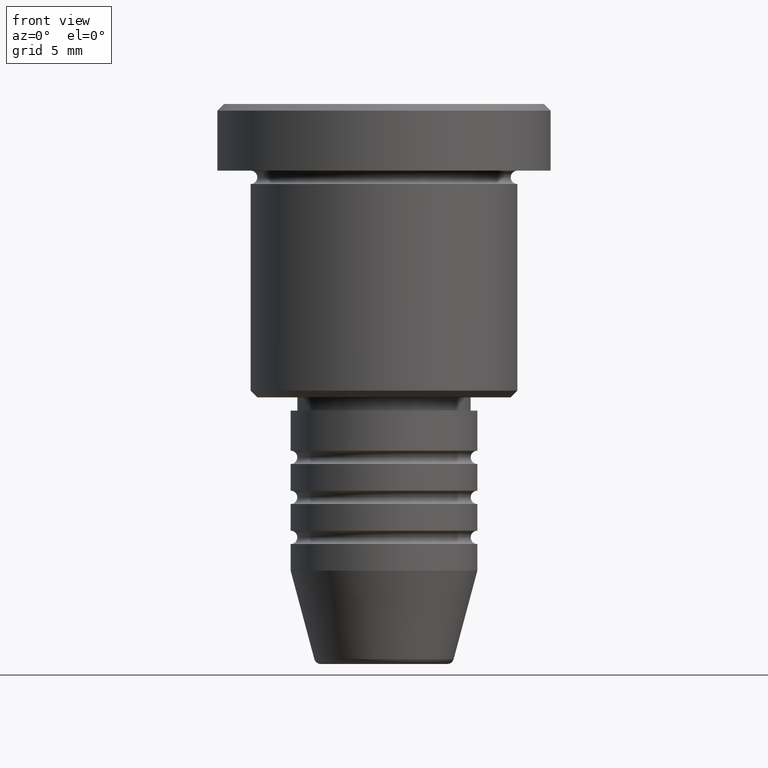
[diagram: clean part render]
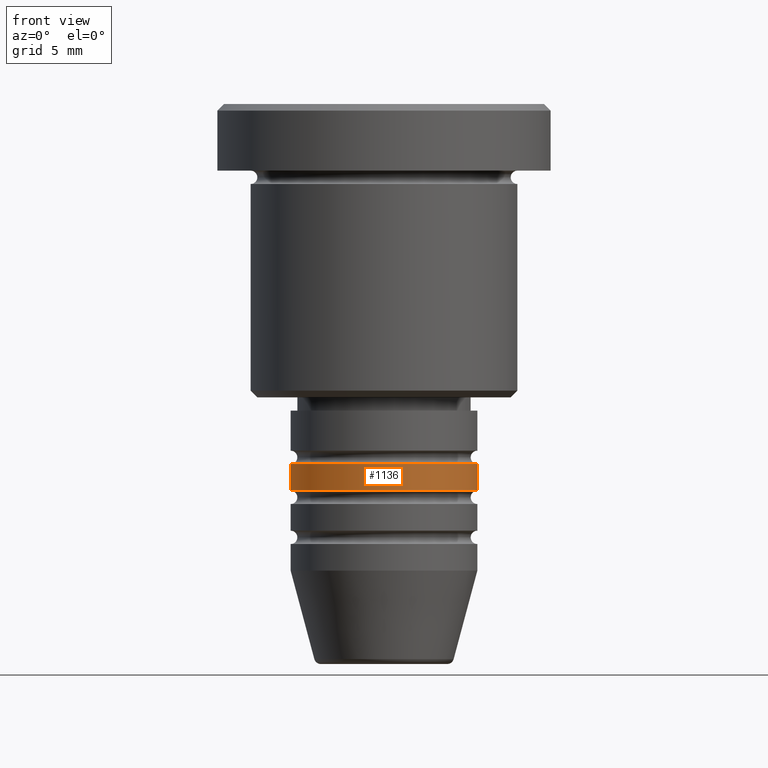
[diagram: same view with one face highlighted and labeled with its STEP entity id]
A machine part, front view. The second image highlights one B-rep face of the part: STEP entity #1136.
In plain terms, the highlighted cylindrical surface (partial cylindrical patch) has radius 7 mm, axis along (-0, -0, 1).
Its self-contained STEP definition (entity closure, byte-faithful):
#25 = ORIENTED_EDGE ( 'NONE', *, *, #592, .T. ) ;
#37 = DIRECTION ( 'NONE',  ( 1.000000000000000000, 0.000000000000000000, 0.000000000000000000 ) ) ;
#75 = VECTOR ( 'NONE', #446, 1000.000000000000000 ) ;
#118 = LINE ( 'NONE', #851, #843 ) ;
#169 = CYLINDRICAL_SURFACE ( 'NONE', #709, 7.000000000000000000 ) ;
#225 = VERTEX_POINT ( 'NONE', #791 ) ;
#231 = CIRCLE ( 'NONE', #333, 7.000000000000000000 ) ;
#320 = CARTESIAN_POINT ( 'NONE',  ( 0.000000000000000000, 0.000000000000000000, -28.99999999999997868 ) ) ;
#324 = DIRECTION ( 'NONE',  ( -0.000000000000000000, -0.000000000000000000, 1.000000000000000000 ) ) ;
#333 = AXIS2_PLACEMENT_3D ( 'NONE', #320, #778, #37 ) ;
#397 = DIRECTION ( 'NONE',  ( 1.000000000000000000, 0.000000000000000000, 0.000000000000000000 ) ) ;
#446 = DIRECTION ( 'NONE',  ( -0.000000000000000000, -0.000000000000000000, 1.000000000000000000 ) ) ;
#451 = CARTESIAN_POINT ( 'NONE',  ( 0.000000000000000000, 0.000000000000000000, 0.000000000000000000 ) ) ;
#475 = ORIENTED_EDGE ( 'NONE', *, *, #989, .F. ) ;
#488 = VERTEX_POINT ( 'NONE', #907 ) ;
#511 = CARTESIAN_POINT ( 'NONE',  ( 7.000000000000000000, 0.000000000000000000, -26.99999999999997868 ) ) ;
#533 = CARTESIAN_POINT ( 'NONE',  ( 7.000000000000000000, 0.000000000000000000, 0.000000000000000000 ) ) ;
#561 = CIRCLE ( 'NONE', #917, 7.000000000000000000 ) ;
#592 = EDGE_CURVE ( 'NONE', #488, #225, #231, .T. ) ;
#613 = CARTESIAN_POINT ( 'NONE',  ( -7.000000000000000000, 8.572527594031473190E-16, -26.99999999999997868 ) ) ;
#616 = VERTEX_POINT ( 'NONE', #511 ) ;
#636 = DIRECTION ( 'NONE',  ( 1.000000000000000000, 0.000000000000000000, 0.000000000000000000 ) ) ;
#660 = ORIENTED_EDGE ( 'NONE', *, *, #1105, .T. ) ;
#679 = VERTEX_POINT ( 'NONE', #613 ) ;
#709 = AXIS2_PLACEMENT_3D ( 'NONE', #451, #1078, #636 ) ;
#717 = FACE_OUTER_BOUND ( 'NONE', #1101, .T. ) ;
#778 = DIRECTION ( 'NONE',  ( -0.000000000000000000, -0.000000000000000000, 1.000000000000000000 ) ) ;
#791 = CARTESIAN_POINT ( 'NONE',  ( 7.000000000000000000, 0.000000000000000000, -28.99999999999997868 ) ) ;
#843 = VECTOR ( 'NONE', #855, 1000.000000000000000 ) ;
#851 = CARTESIAN_POINT ( 'NONE',  ( -7.000000000000000000, 8.572527594031473190E-16, 0.000000000000000000 ) ) ;
#855 = DIRECTION ( 'NONE',  ( -0.000000000000000000, -0.000000000000000000, 1.000000000000000000 ) ) ;
#883 = CARTESIAN_POINT ( 'NONE',  ( 0.000000000000000000, 0.000000000000000000, -26.99999999999997868 ) ) ;
#907 = CARTESIAN_POINT ( 'NONE',  ( -7.000000000000000000, 8.572527594031473190E-16, -28.99999999999997868 ) ) ;
#917 = AXIS2_PLACEMENT_3D ( 'NONE', #883, #324, #397 ) ;
#989 = EDGE_CURVE ( 'NONE', #488, #679, #118, .T. ) ;
#1078 = DIRECTION ( 'NONE',  ( -0.000000000000000000, -0.000000000000000000, 1.000000000000000000 ) ) ;
#1081 = EDGE_CURVE ( 'NONE', #679, #616, #561, .T. ) ;
#1101 = EDGE_LOOP ( 'NONE', ( #475, #25, #660, #1169 ) ) ;
#1105 = EDGE_CURVE ( 'NONE', #225, #616, #1177, .T. ) ;
#1136 = ADVANCED_FACE ( 'NONE', ( #717 ), #169, .T. ) ;
#1169 = ORIENTED_EDGE ( 'NONE', *, *, #1081, .F. ) ;
#1177 = LINE ( 'NONE', #533, #75 ) ;